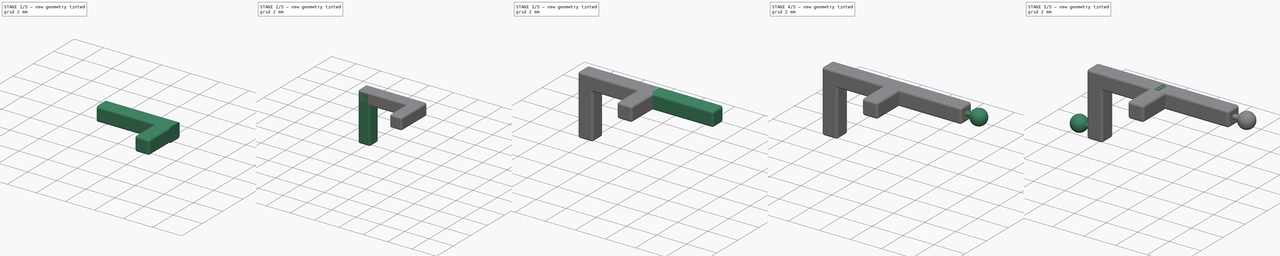
[diagram: build sequence overview — one tinted view per stage of 5, left to right]
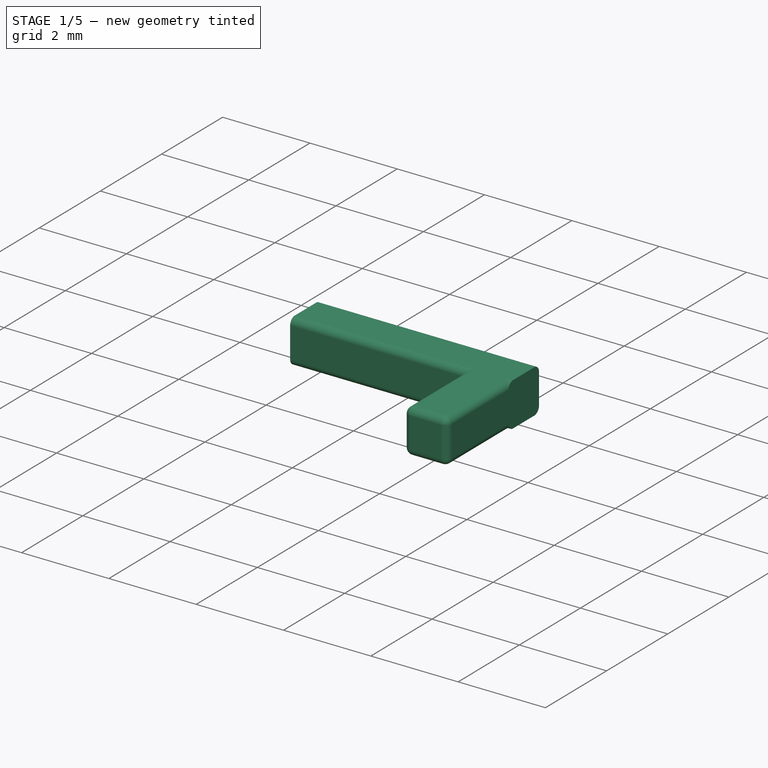
[diagram: stage 1 of 5 — iso view after this stage's code; geometry added in this stage tinted green]
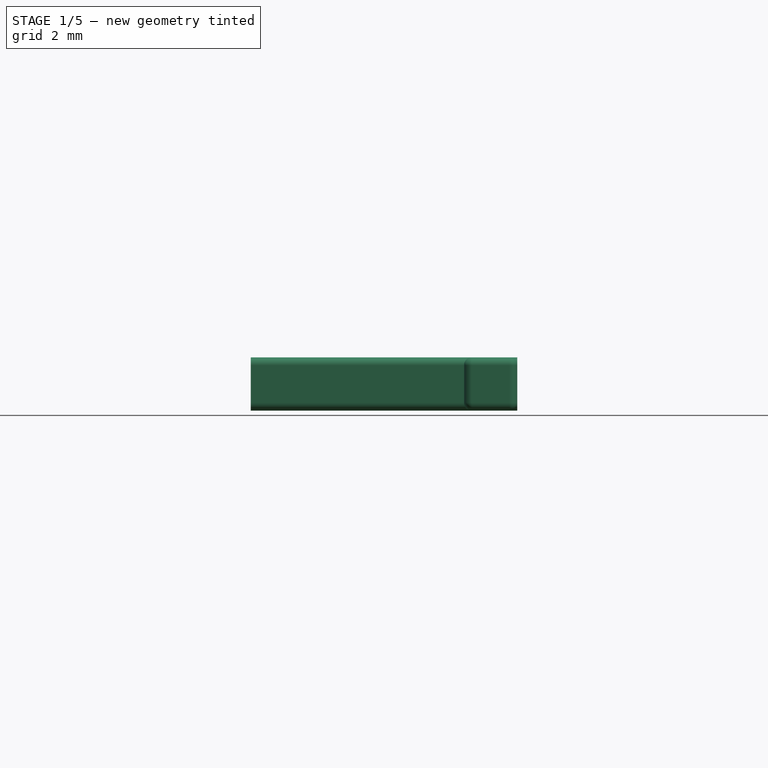
[diagram: stage 1 of 5 — front view after this stage's code; geometry added in this stage tinted green]
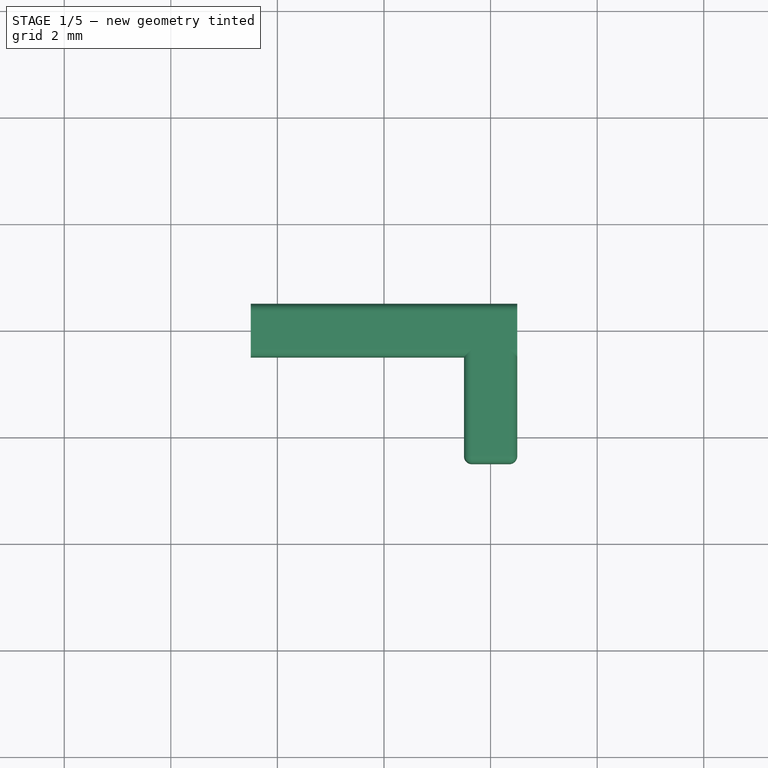
[diagram: stage 1 of 5 — top view after this stage's code; geometry added in this stage tinted green]
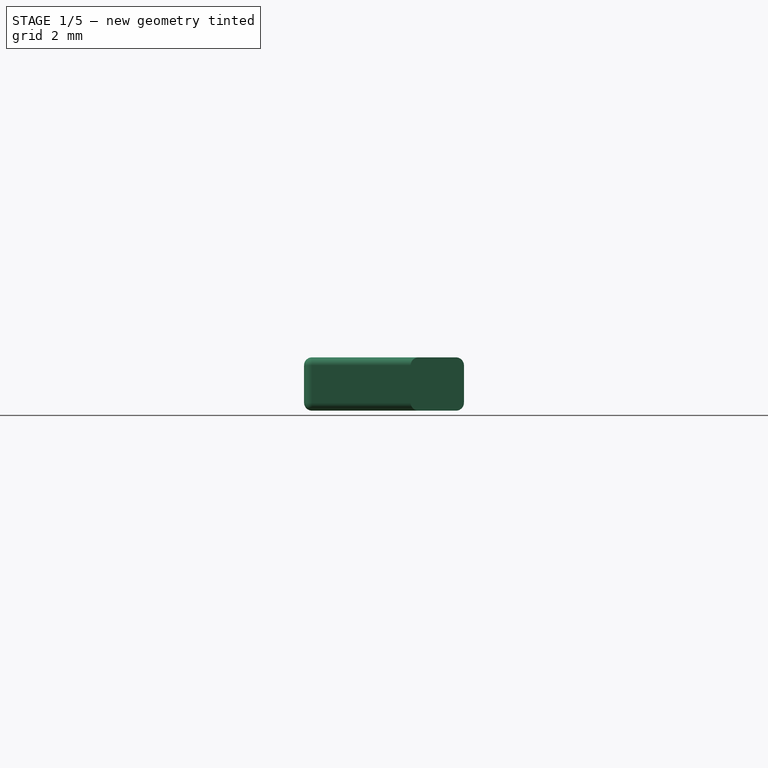
[diagram: stage 1 of 5 — right view after this stage's code; geometry added in this stage tinted green]
FCSTD DOCUMENT  (FreeCAD 0.20R29177 (Git))
Label: ax1
License: All rights reserved
LicenseURL: http://en.wikipedia.org/wiki/All_rights_reserved
objects: PartDesign::Plane×8, Sketcher::SketchObject×8, PartDesign::Pad×7, PartDesign::Body×5, PartDesign::Fillet×4, PartDesign::Line×2, PartDesign::Revolution×2, PartDesign::Point×2, Spreadsheet::Sheet×1, Part::MultiFuse×1, PartDesign::FeatureBase×1, Part::Part2DObjectPython×1
note: 54 computed .brp shape members not serialized (recipe doc carries the construction recipe); baked Part::Feature solids carry a one-line shape summary decoded from their .brp

FEATURE [PartDesign::Body] Body001  label="VertArmBody"
  Group = -> [DatumPlane002,Sketch001,Pad001,Fillet001]
  Origin = -> Origin001
  Tip = -> Fillet001
FEATURE [PartDesign::Plane] DatumPlane003  label="LeftArmBaseDatumPlane"
  AttachmentOffset = pos=(0,0,0.5) rot=(0,0,1;0rad)
  Length = 60
  MapMode = 5
  Placement = pos=(0.5,-1e-16,1e-16) rot=(0.57735,0.57735,0.57735;2.0944rad)
  ResizeMode = 0
  Support = -> [YZ_Plane002]
  Width = 60
  expr: .AttachmentOffset.Base.y = -Spreadsheet.LeftArmDatumPlaneZOffset
  expr: .AttachmentOffset.Base.z = Spreadsheet.LeftArmBaseDatumPlaneXOffset
FEATURE [Sketcher::SketchObject] Sketch002  label="LeftArmSketch"
  FullyConstrained = true
  MapMode = 5
  Placement = pos=(0.5,-1e-16,1e-16) rot=(0.57735,0.57735,0.57735;2.0944rad)
  Support = -> [DatumPlane003]
  expr: Constraints[20] = Spreadsheet.EdgeFilletRadius
  expr: Constraints[21] = Spreadsheet.BeamHeight
  expr: Constraints[22] = Spreadsheet.BeamWidth
  sketch-geometry (10):
    g0: ArcOfCircle CenterX=-0.35 CenterY=0.35 CenterZ=0 NormalX=0 NormalY=0 NormalZ=1 AngleXU=0 Radius=0.15 StartAngle=1.5708 EndAngle=3.14159
    g1: LineSegment StartX=-0.35 StartY=0.5 StartZ=0 EndX=0.35 EndY=0.5 EndZ=0
    g2: ArcOfCircle CenterX=0.35 CenterY=0.35 CenterZ=0 NormalX=0 NormalY=0 NormalZ=1 AngleXU=0 Radius=0.15 StartAngle=3e-16 EndAngle=1.5708
    g3: LineSegment StartX=0.5 StartY=0.35 StartZ=0 EndX=0.5 EndY=-0.35 EndZ=0
    g4: ArcOfCircle CenterX=0.35 CenterY=-0.35 CenterZ=0 NormalX=0 NormalY=0 NormalZ=1 AngleXU=0 Radius=0.15 StartAngle=4.71239 EndAngle=6.28319
    g5: LineSegment StartX=0.35 StartY=-0.5 StartZ=0 EndX=-0.35 EndY=-0.5 EndZ=0
    g6: ArcOfCircle CenterX=-0.35 CenterY=-0.35 CenterZ=0 NormalX=0 NormalY=0 NormalZ=1 AngleXU=0 Radius=0.15 StartAngle=3.14159 EndAngle=4.71239
    g7: LineSegment StartX=-0.5 StartY=-0.35 StartZ=0 EndX=-0.5 EndY=0.35 EndZ=0
    g8: GeomPoint X=-0.5 Y=0.5 Z=0
    g9: GeomPoint X=0.5 Y=-0.5 Z=0
  constraints (23):
    c: Tangent(g0,g1) = 1.5708
    c: Tangent(g1,g2) = 1.5708
    c: Tangent(g2,g3) = 1.5708
    c: Tangent(g3,g4) = 1.5708
    c: Tangent(g4,g5) = 1.5708
    c: Tangent(g5,g6) = 1.5708
    c: Tangent(g6,g7) = 1.5708
    c: Tangent(g7,g0) = 1.5708
    c: Horizontal(g1)
    c: Horizontal(g5)
    c: Vertical(g3)
    c: Vertical(g7)
    c: Equal(g0,g2)
    c: Equal(g2,g4)
    c: Equal(g4,g6)
    c: PointOnObject(g8,g1)
    c: PointOnObject(g8,g7)
    c: PointOnObject(g9,g3)
    c: PointOnObject(g9,g5)
    c: Symmetric(g0,g4,g-1)
    c: Radius(g0) = 0.15
    c: DistanceY(g4,g1) = 1
    c: DistanceX(g6,g3) = 1
FEATURE [PartDesign::Pad] Pad002  label="LeftArmPad"
  Direction = (1,-1e-16,1e-16)
  Length = 5
  Length2 = 10
  Placement = pos=(0.5,0,0) rot=(0.57735,0.57735,0.57735;2.0944rad)
  Profile = -> Sketch002
  ReferenceAxis = -> Sketch002 [N_Axis]
  Reversed = true
  Type = 0
  expr: Length = Spreadsheet.LeftArmLength
FEATURE [PartDesign::Body] Body002  label="LeftArmBody"
  Group = -> [DatumPlane003,Sketch002,Pad002,Fillet002]
  Origin = -> Origin002
  Tip = -> Fillet002
FEATURE [PartDesign::Plane] DatumPlane004  label="FrontArmBaseDatumPlane"
  AttachmentOffset = pos=(0,0,-0.5) rot=(0,0,1;0rad)
  Length = 60
  MapMode = 5
  Placement = pos=(0,0.5,1e-16) rot=(1,0,0;1.5708rad)
  ResizeMode = 0
  Support = -> [XZ_Plane003]
  Width = 60
  expr: .AttachmentOffset.Base.z = -Spreadsheet.FrontArmBaseDatumPlaneYOffset
FEATURE [Sketcher::SketchObject] Sketch003  label="FrontArmSketch"
  FullyConstrained = true
  MapMode = 5
  Placement = pos=(0,0.5,1e-16) rot=(1,0,0;1.5708rad)
  Support = -> [DatumPlane004]
  expr: Constraints[20] = Spreadsheet.EdgeFilletRadius
  expr: Constraints[21] = Spreadsheet.BeamHeight
  expr: Constraints[22] = Spreadsheet.BeamHeight
  sketch-geometry (10):
    g0: ArcOfCircle CenterX=-0.35 CenterY=0.35 CenterZ=0 NormalX=0 NormalY=0 NormalZ=1 AngleXU=0 Radius=0.15 StartAngle=1.5708 EndAngle=3.14159
    g1: LineSegment StartX=-0.35 StartY=0.5 StartZ=0 EndX=0.35 EndY=0.5 EndZ=0
    g2: ArcOfCircle CenterX=0.35 CenterY=0.35 CenterZ=0 NormalX=0 NormalY=0 NormalZ=1 AngleXU=0 Radius=0.15 StartAngle=-6.7943e-11 EndAngle=1.5708
    g3: LineSegment StartX=0.5 StartY=0.35 StartZ=0 EndX=0.5 EndY=-0.35 EndZ=0
    g4: ArcOfCircle CenterX=0.35 CenterY=-0.35 CenterZ=0 NormalX=0 NormalY=0 NormalZ=1 AngleXU=0 Radius=0.15 StartAngle=4.71239 EndAngle=6.28319
    g5: LineSegment StartX=0.35 StartY=-0.5 StartZ=0 EndX=-0.35 EndY=-0.5 EndZ=0
    g6: ArcOfCircle CenterX=-0.35 CenterY=-0.35 CenterZ=0 NormalX=0 NormalY=0 NormalZ=1 AngleXU=0 Radius=0.15 StartAngle=3.14159 EndAngle=4.71239
    g7: LineSegment StartX=-0.5 StartY=-0.35 StartZ=0 EndX=-0.5 EndY=0.35 EndZ=0
    g8: GeomPoint X=-0.5 Y=0.5 Z=0
    g9: GeomPoint X=0.5 Y=-0.5 Z=0
  constraints (23):
    c: Tangent(g0,g1) = 1.5708
    c: Tangent(g1,g2) = 1.5708
    c: Tangent(g2,g3) = 1.5708
    c: Tangent(g3,g4) = 1.5708
    c: Tangent(g4,g5) = 1.5708
    c: Tangent(g5,g6) = 1.5708
    c: Tangent(g6,g7) = 1.5708
    c: Tangent(g7,g0) = 1.5708
    c: Horizontal(g1)
    c: Horizontal(g5)
    c: Vertical(g3)
    c: Vertical(g7)
    c: Equal(g0,g2)
    c: Equal(g2,g4)
    c: Equal(g4,g6)
    c: PointOnObject(g8,g1)
    c: PointOnObject(g8,g7)
    c: PointOnObject(g9,g3)
    c: PointOnObject(g9,g5)
    c: Symmetric(g0,g4,g-1)
    c: Radius(g0) = 0.15
    c: DistanceX(g6,g3) = 1
    c: DistanceY(g4,g1) = 1
FEATURE [PartDesign::Pad] Pad003  label="FrontArmPad"
  Direction = (0,-1,-2e-16)
  Length = 3
  Length2 = 10
  Placement = pos=(0,0.5,0) rot=(1,0,0;1.5708rad)
  Profile = -> Sketch003
  ReferenceAxis = -> Sketch003 [N_Axis]
  Type = 0
  expr: Length = Spreadsheet.FrontArmLength
FEATURE [PartDesign::Fillet] Fillet003  label="FrontArmEndFillet"
  Base = -> Pad003 [Face9,Face10]
  BaseFeature = -> Pad003
  Placement = pos=(0,0.5,0) rot=(1,0,0;1.5708rad)
  Radius = 0.15
  SupportTransform = false
  UseAllEdges = false
  expr: Radius = Spreadsheet.EdgeFilletRadius
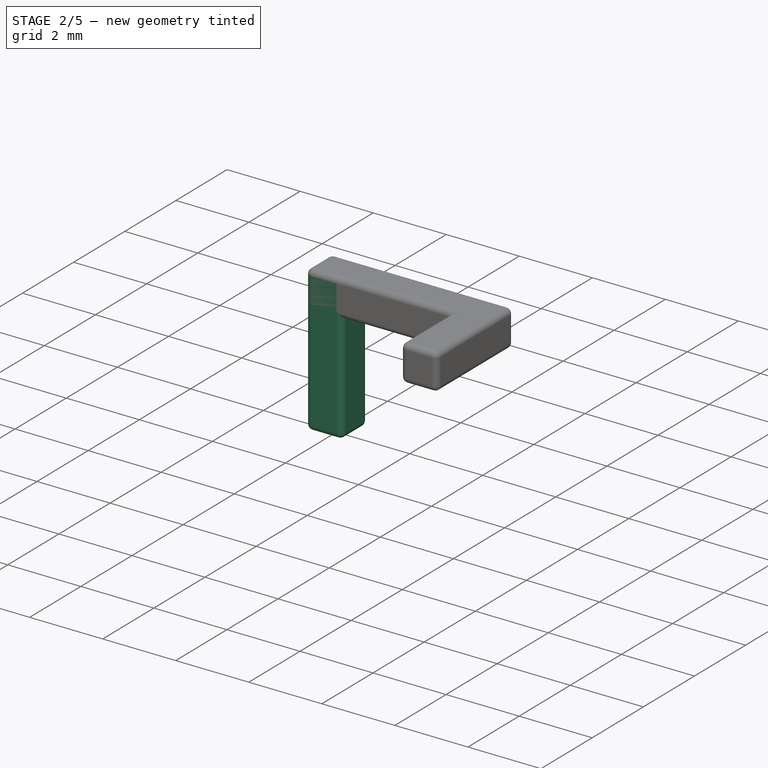
[diagram: stage 2 of 5 — iso view after this stage's code; geometry added in this stage tinted green]
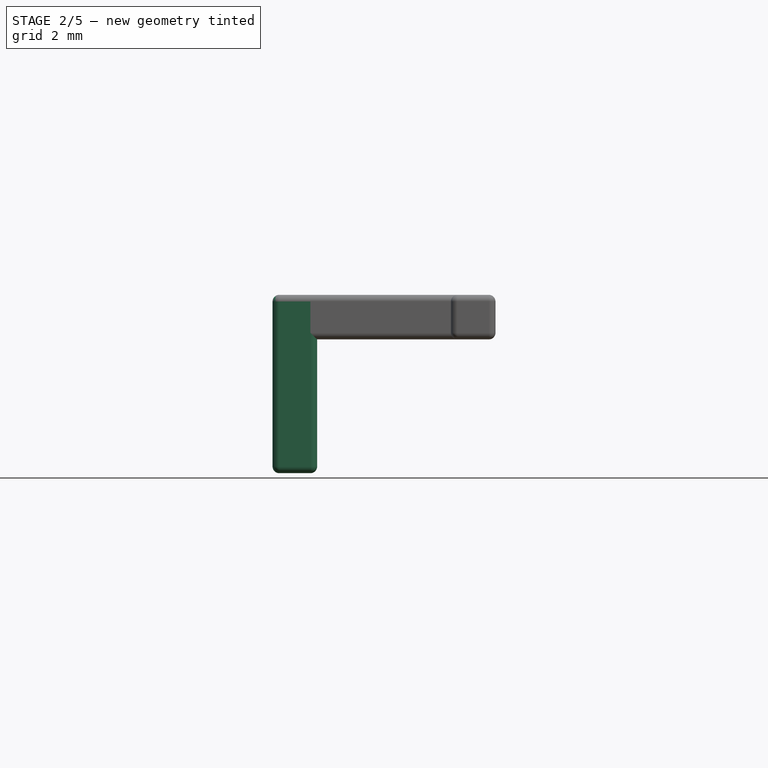
[diagram: stage 2 of 5 — front view after this stage's code; geometry added in this stage tinted green]
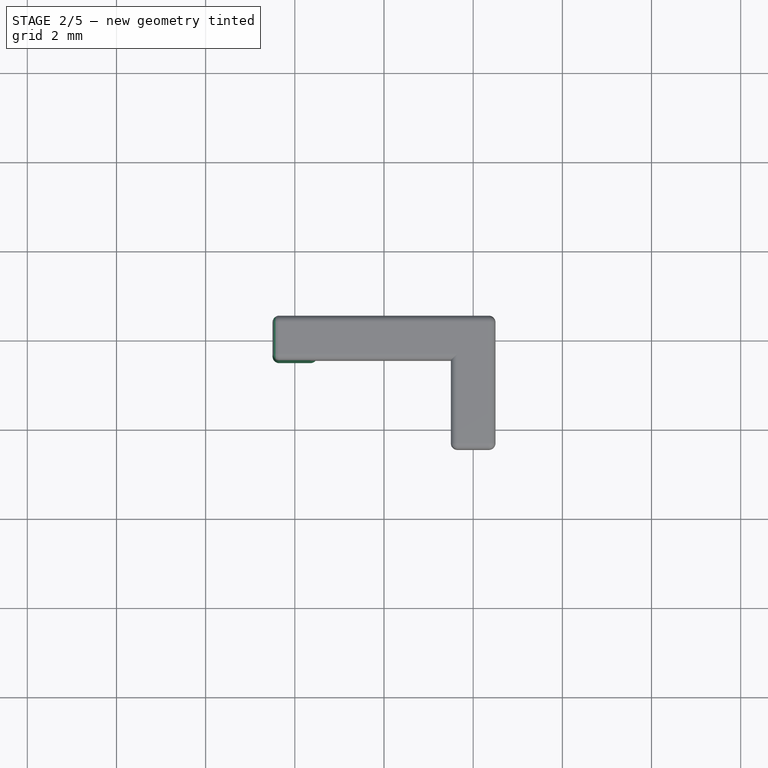
[diagram: stage 2 of 5 — top view after this stage's code; geometry added in this stage tinted green]
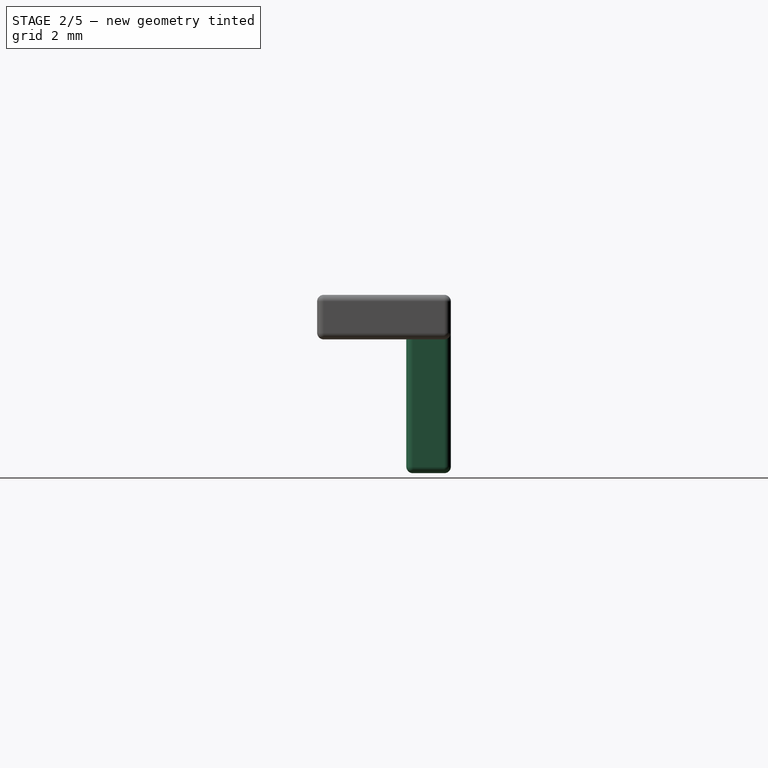
[diagram: stage 2 of 5 — right view after this stage's code; geometry added in this stage tinted green]
FEATURE [PartDesign::Body] Body  label="RightArmBody"
  Group = -> [DatumPlane,Sketch,Pad,Fillet]
  Origin = -> Origin
  Tip = -> Fillet
FEATURE [PartDesign::Plane] DatumPlane002  label="VertArmBaseDatumPlane"
  AttachmentOffset = pos=(-4,0,0.5) rot=(0,0,1;0rad)
  Length = 60
  MapMode = 5
  Placement = pos=(-4,0,0.5) rot=(0,0,1;0rad)
  ResizeMode = 0
  Support = -> [XY_Plane001]
  Width = 60
  expr: .AttachmentOffset.Base.x = -Spreadsheet.VertArmBaseDatumPlaneXOffet
  expr: .AttachmentOffset.Base.z = Spreadsheet.VertArmBaseDatumPlaneZOffset
FEATURE [Sketcher::SketchObject] Sketch001  label="VertArmSketch"
  FullyConstrained = true
  MapMode = 5
  Placement = pos=(-4,0,0.5) rot=(0,0,1;0rad)
  Support = -> [DatumPlane002]
  expr: Constraints[20] = Spreadsheet.EdgeFilletRadius
  expr: Constraints[21] = Spreadsheet.BeamHeight
  expr: Constraints[22] = Spreadsheet.BeamWidth
  sketch-geometry (10):
    g0: ArcOfCircle CenterX=-0.35 CenterY=0.35 CenterZ=0 NormalX=0 NormalY=0 NormalZ=1 AngleXU=0 Radius=0.15 StartAngle=1.5708 EndAngle=3.14159
    g1: LineSegment StartX=-0.35 StartY=0.5 StartZ=0 EndX=0.35 EndY=0.5 EndZ=0
    g2: ArcOfCircle CenterX=0.35 CenterY=0.35 CenterZ=0 NormalX=0 NormalY=0 NormalZ=1 AngleXU=0 Radius=0.15 StartAngle=3.23e-14 EndAngle=1.5708
    g3: LineSegment StartX=0.5 StartY=0.35 StartZ=0 EndX=0.5 EndY=-0.35 EndZ=0
    g4: ArcOfCircle CenterX=0.35 CenterY=-0.35 CenterZ=0 NormalX=0 NormalY=0 NormalZ=1 AngleXU=0 Radius=0.15 StartAngle=4.71239 EndAngle=6.28319
    g5: LineSegment StartX=0.35 StartY=-0.5 StartZ=0 EndX=-0.35 EndY=-0.5 EndZ=0
    g6: ArcOfCircle CenterX=-0.35 CenterY=-0.35 CenterZ=0 NormalX=0 NormalY=0 NormalZ=1 AngleXU=0 Radius=0.15 StartAngle=3.14159 EndAngle=4.71239
    g7: LineSegment StartX=-0.5 StartY=-0.35 StartZ=0 EndX=-0.5 EndY=0.35 EndZ=0
    g8: GeomPoint X=-0.5 Y=0.5 Z=0
    g9: GeomPoint X=0.5 Y=-0.5 Z=0
  constraints (23):
    c: Tangent(g0,g1) = 1.5708
    c: Tangent(g1,g2) = 1.5708
    c: Tangent(g2,g3) = 1.5708
    c: Tangent(g3,g4) = 1.5708
    c: Tangent(g4,g5) = 1.5708
    c: Tangent(g5,g6) = 1.5708
    c: Tangent(g6,g7) = 1.5708
    c: Tangent(g7,g0) = 1.5708
    c: Horizontal(g1)
    c: Horizontal(g5)
    c: Vertical(g3)
    c: Vertical(g7)
    c: Equal(g0,g2)
    c: Equal(g2,g4)
    c: Equal(g4,g6)
    c: PointOnObject(g8,g1)
    c: PointOnObject(g8,g7)
    c: PointOnObject(g9,g3)
    c: PointOnObject(g9,g5)
    c: Symmetric(g4,g0,g-1)
    c: Radius(g0) = 0.15
    c: DistanceX(g6,g3) = 1
    c: DistanceY(g4,g1) = 1
FEATURE [PartDesign::Pad] Pad001  label="VertArmPad"
  Direction = (0,0,1)
  Length = 4
  Length2 = 10
  Placement = pos=(-4,0,0.5) rot=(0,0,1;0rad)
  Profile = -> Sketch001
  ReferenceAxis = -> Sketch001 [N_Axis]
  Reversed = true
  Type = 0
  expr: Length = Spreadsheet.VertArmLength
FEATURE [PartDesign::Fillet] Fillet001  label="VertArmEndFillet"
  Base = -> Pad001 [Face9,Face10]
  BaseFeature = -> Pad001
  Placement = pos=(-4,0,0.5) rot=(0,0,1;0rad)
  Radius = 0.15
  SupportTransform = false
  UseAllEdges = false
  expr: Radius = Spreadsheet.EdgeFilletRadius
FEATURE [PartDesign::Fillet] Fillet002  label="LeftArmEndFillet"
  Base = -> Pad002 [Face9,Face10]
  BaseFeature = -> Pad002
  Placement = pos=(0.5,0,0) rot=(0.57735,0.57735,0.57735;2.0944rad)
  Radius = 0.15
  SupportTransform = false
  UseAllEdges = false
  expr: Radius = Spreadsheet.EdgeFilletRadius
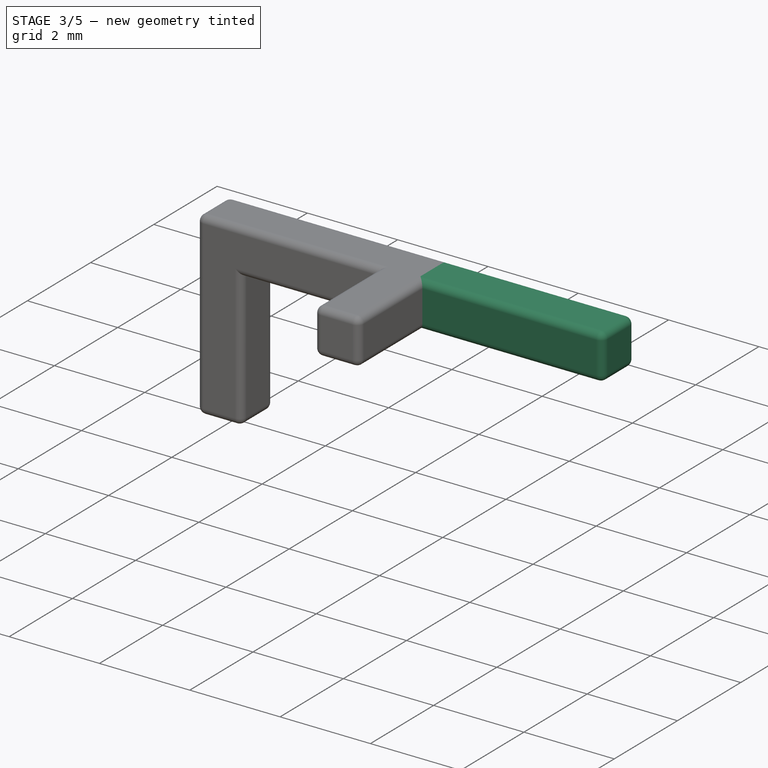
[diagram: stage 3 of 5 — iso view after this stage's code; geometry added in this stage tinted green]
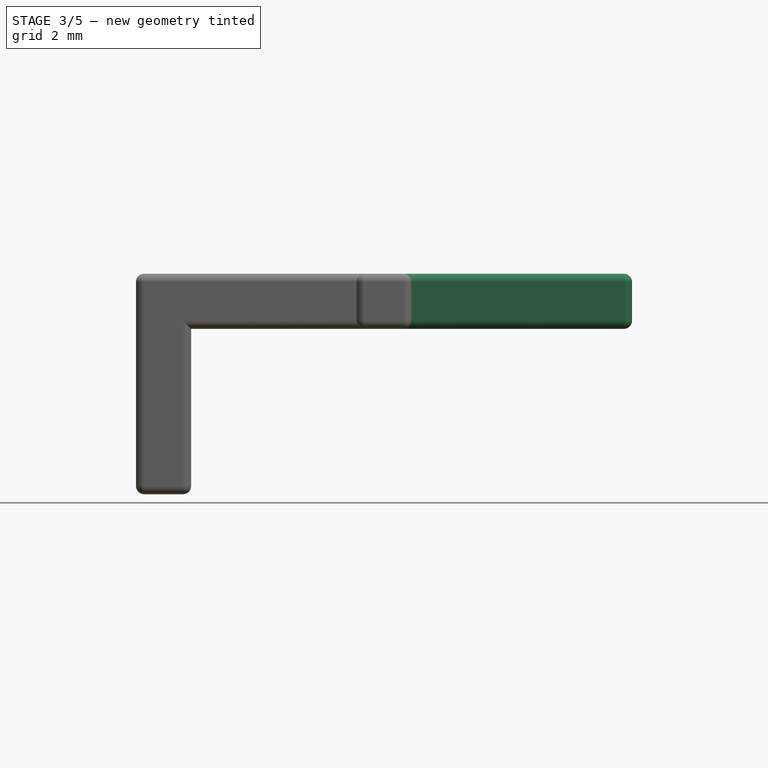
[diagram: stage 3 of 5 — front view after this stage's code; geometry added in this stage tinted green]
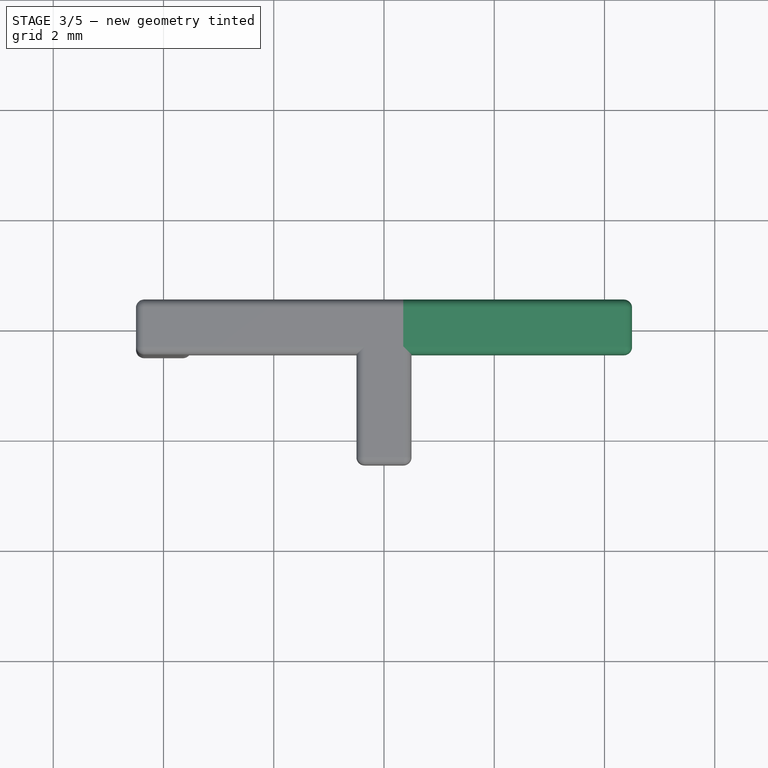
[diagram: stage 3 of 5 — top view after this stage's code; geometry added in this stage tinted green]
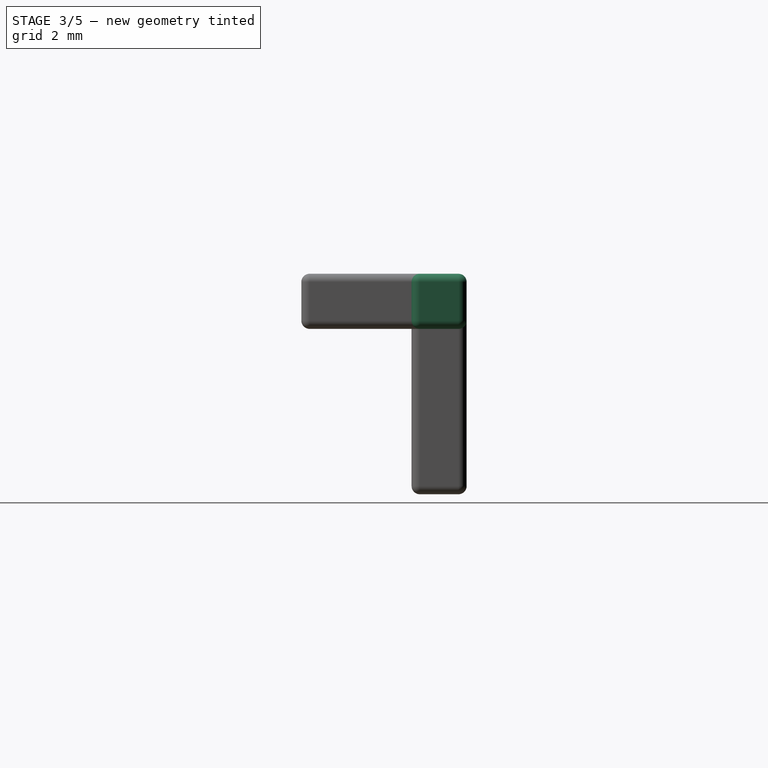
[diagram: stage 3 of 5 — right view after this stage's code; geometry added in this stage tinted green]
FEATURE [Spreadsheet::Sheet] Spreadsheet
  cells = A2=Design Parameters; A3=RefLength; B3(RefLength)==1mm; A4=RightArmLength; B4(RightArmLength)==5 * RefLength; A5=LeftArmLength; B5(LeftArmLength)==5 * RefLength; A6=VertArmLength; B6(VertArmLength)==4 * RefLength; A7=FrontArmLength; B7(FrontArmLength)==3 * RefLength; A8=BeamWidth; B8(BeamWidth)==1 * RefLength; A9=BeamHeight; B9(BeamHeight)==1 * RefLength; A10=BallJointDiam; B10(BallJointDiam)==1 * RefLength; A11=BallJointConnDiam; B11(BallJointConnDiam)==0.3 * RefLength; A12=BallJointConnLength; B12(BallJointConnLength)==0.3 * RefLength; A13=BallJointConnPadLength; B13(BallJointConnPadLength)==BallJointConnLength + 0.5 * BallJointDiam; A14=RightArmBaseDatumPlaneXOffset; B14(RightArmBaseDatumPlaneXOffset)==0.5 * BeamHeight; A15=RightArmTipDatumPlaneXOffset; B15(RightArmTipDatumPlaneXOffset)==RightArmLength - 0.5 * BeamHeight; A16=RightArmBallJointDatumPlaneXOffset; B16(RightArmBallJointDatumPlaneXOffset)==RightArmLength - 0.5 * BeamHeight + BallJointConnLength + 0.5 * BallJointDiam; A17=VertArmBaseDatumPlaneXOffet; B17(VertArmBaseDatumPlaneXOffet)==LeftArmLength - BeamHeight; A18=VertArmBaseDatumPlaneZOffset; B18(VertArmBaseDatumPlaneZOffset)==0.5 * BeamHeight; A19=VertArmTipDatumPlaneZOffset; B19(VertArmTipDatumPlaneZOffset)==VertArmLength - 0.5 * BeamHeight; A20=LeftArmBaseDatumPlaneXOffset; B20(LeftArmBaseDatumPlaneXOffset)==0.5 * BeamHeight; A21=LeftArmTipDatumPlaneXOffset; B21(LeftArmTipDatumPlaneXOffset)==LeftArmLength - 0.5 * BeamHeight; A22=LeftArmDatumPlaneZOffset; B22(LeftArmDatumPlaneZOffset)==0mm; A23=LeftBallJointConnDatumPlaneZOffset; B23(LeftBallJointConnDatumPlaneZOffset)==VertArmLength - BeamHeight; A24=LeftBallJointDatumPlaneXOffset; B24(LeftBallJointDatumPlaneXOffset)==LeftArmLength - 0.5 * BeamHeight + BallJointConnLength + 0.5 * BallJointDiam; A25=FrontArmBaseDatumPlaneYOffset; B25(FrontArmBaseDatumPlaneYOffset)==0.5 * BeamWidth; A26=EdgeFilletRadius; B26(EdgeFilletRadius)==0.15 * RefLength; A27=BallJointConnFilletRadius; B27(BallJointConnFilletRadius)==0.1 * RefLength; A28=LabelString; B28(LabelString)=AX1; A29=LabelSize; B29(LabelSize)==0.15 * RefLength; A30=LabelPadHeight; B30(LabelPadHeight)==0.05 * RefLength
FEATURE [PartDesign::Plane] DatumPlane  label="RightArmBaseDatumPlane"
  AttachmentOffset = pos=(0,0,-0.5) rot=(0,0,1;0rad)
  Length = 60
  MapMode = 5
  Placement = pos=(-0.5,1e-16,-1e-16) rot=(0.57735,0.57735,0.57735;2.0944rad)
  ResizeMode = 0
  Support = -> [YZ_Plane]
  Width = 60
  expr: .AttachmentOffset.Base.z = -Spreadsheet.RightArmBaseDatumPlaneXOffset
FEATURE [Sketcher::SketchObject] Sketch  label="RightArmSketch"
  FullyConstrained = true
  MapMode = 5
  Placement = pos=(-0.5,1e-16,-1e-16) rot=(0.57735,0.57735,0.57735;2.0944rad)
  Support = -> [DatumPlane]
  expr: Constraints[20] = Spreadsheet.EdgeFilletRadius
  expr: Constraints[21] = Spreadsheet.BeamHeight
  expr: Constraints[22] = Spreadsheet.BeamWidth
  sketch-geometry (10):
    g0: ArcOfCircle CenterX=-0.35 CenterY=0.35 CenterZ=0 NormalX=0 NormalY=0 NormalZ=1 AngleXU=0 Radius=0.15 StartAngle=1.5708 EndAngle=3.14159
    g1: LineSegment StartX=-0.35 StartY=0.5 StartZ=0 EndX=0.35 EndY=0.5 EndZ=0
    g2: ArcOfCircle CenterX=0.35 CenterY=0.35 CenterZ=0 NormalX=0 NormalY=0 NormalZ=1 AngleXU=0 Radius=0.15 StartAngle=0 EndAngle=1.5708
    g3: LineSegment StartX=0.5 StartY=0.35 StartZ=0 EndX=0.5 EndY=-0.35 EndZ=0
    g4: ArcOfCircle CenterX=0.35 CenterY=-0.35 CenterZ=0 NormalX=0 NormalY=0 NormalZ=1 AngleXU=0 Radius=0.15 StartAngle=4.71239 EndAngle=6.28319
    g5: LineSegment StartX=0.35 StartY=-0.5 StartZ=0 EndX=-0.35 EndY=-0.5 EndZ=0
    g6: ArcOfCircle CenterX=-0.35 CenterY=-0.35 CenterZ=0 NormalX=0 NormalY=0 NormalZ=1 AngleXU=0 Radius=0.15 StartAngle=3.14159 EndAngle=4.71239
    g7: LineSegment StartX=-0.5 StartY=-0.35 StartZ=0 EndX=-0.5 EndY=0.35 EndZ=0
    g8: GeomPoint X=-0.5 Y=0.5 Z=0
    g9: GeomPoint X=0.5 Y=-0.5 Z=0
  constraints (23):
    c: Tangent(g0,g1) = 1.5708
    c: Tangent(g1,g2) = 1.5708
    c: Tangent(g2,g3) = 1.5708
    c: Tangent(g3,g4) = 1.5708
    c: Tangent(g4,g5) = 1.5708
    c: Tangent(g5,g6) = 1.5708
    c: Tangent(g6,g7) = 1.5708
    c: Tangent(g7,g0) = 1.5708
    c: Horizontal(g1)
    c: Horizontal(g5)
    c: Vertical(g3)
    c: Vertical(g7)
    c: Equal(g0,g2)
    c: Equal(g2,g4)
    c: Equal(g4,g6)
    c: PointOnObject(g8,g1)
    c: PointOnObject(g8,g7)
    c: PointOnObject(g9,g3)
    c: PointOnObject(g9,g5)
    c: Symmetric(g0,g4,g-1)
    c: Radius(g0) = 0.15
    c: DistanceY(g4,g1) = 1
    c: DistanceX(g6,g3) = 1
FEATURE [PartDesign::Pad] Pad  label="RightArmPad"
  Direction = (1,-1e-16,1e-16)
  Length = 5
  Length2 = 10
  Placement = pos=(-0.5,0,0) rot=(0.57735,0.57735,0.57735;2.0944rad)
  Profile = -> Sketch
  ReferenceAxis = -> Sketch [N_Axis]
  Type = 0
  expr: Length = Spreadsheet.RightArmLength
FEATURE [PartDesign::Fillet] Fillet  label="RightArmEndFillet"
  Base = -> Pad [Face9,Face10]
  BaseFeature = -> Pad
  Placement = pos=(-0.5,0,0) rot=(0.57735,0.57735,0.57735;2.0944rad)
  Radius = 0.15
  SupportTransform = false
  UseAllEdges = false
  expr: Radius = Spreadsheet.EdgeFilletRadius
FEATURE [PartDesign::Body] Body003  label="FrontArmBody"
  Group = -> [DatumPlane004,Sketch003,Pad003,Fillet003]
  Origin = -> Origin003
  Tip = -> Fillet003
FEATURE [Part::MultiFuse] Fusion
  Shapes = -> [Body,Body001,Body002,Body003]
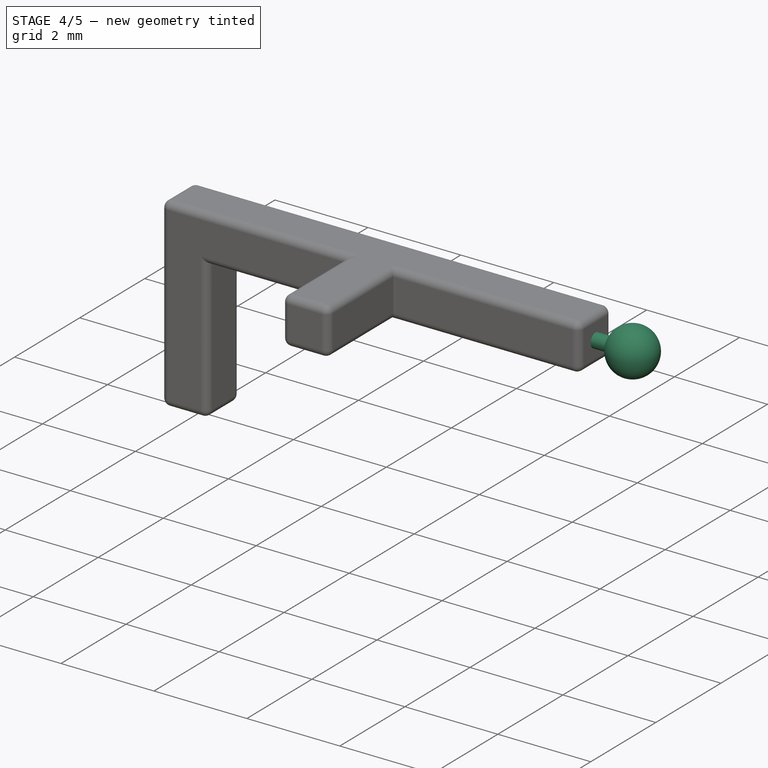
[diagram: stage 4 of 5 — iso view after this stage's code; geometry added in this stage tinted green]
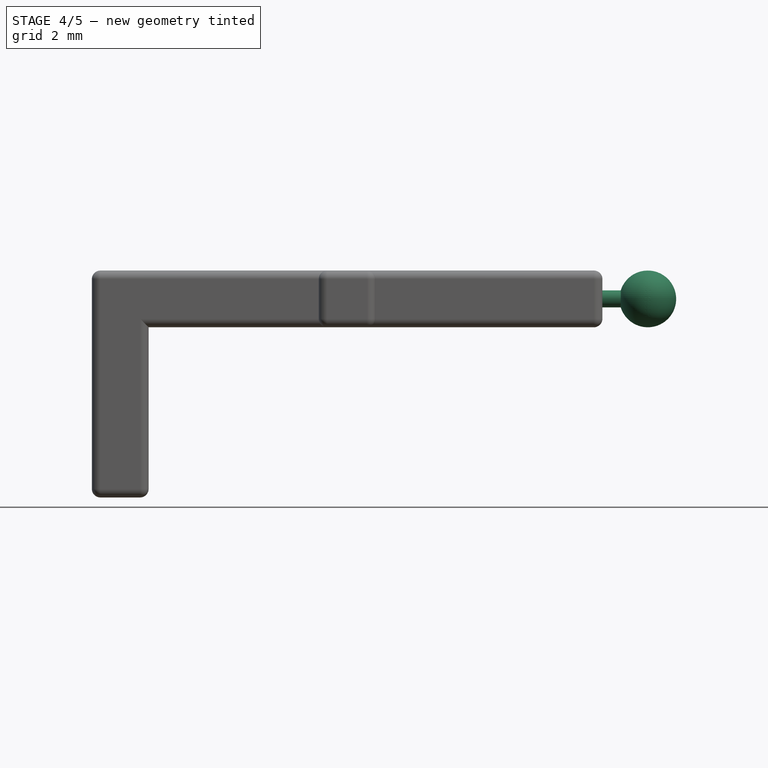
[diagram: stage 4 of 5 — front view after this stage's code; geometry added in this stage tinted green]
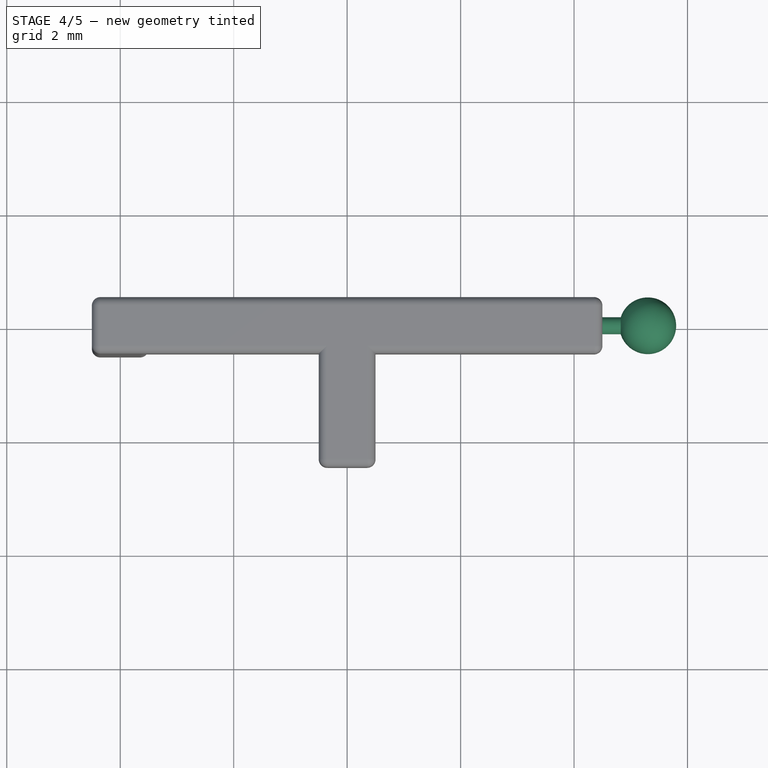
[diagram: stage 4 of 5 — top view after this stage's code; geometry added in this stage tinted green]
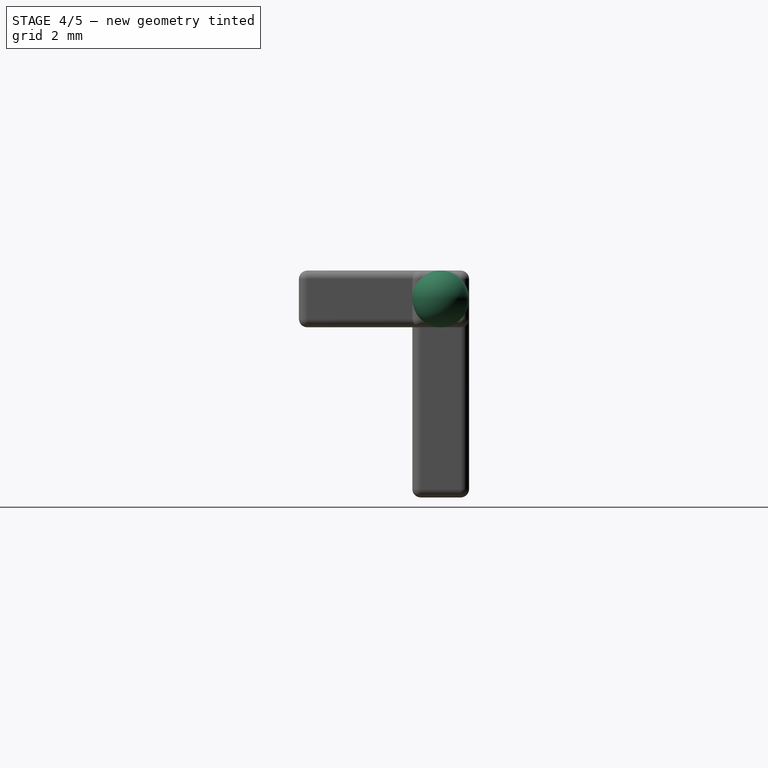
[diagram: stage 4 of 5 — right view after this stage's code; geometry added in this stage tinted green]
FEATURE [PartDesign::FeatureBase] BaseFeature  label="CombinedArmBaseFeature"
  BaseFeature = -> Fusion
FEATURE [PartDesign::Plane] DatumPlane005  label="RightArmTipDatumPlane"
  AttachmentOffset = pos=(0,0,4.5) rot=(0,0,1;0rad)
  Length = 60
  MapMode = 5
  Placement = pos=(4.5,-1e-15,1e-15) rot=(0.57735,0.57735,0.57735;2.0944rad)
  ResizeMode = 0
  Support = -> [YZ_Plane004]
  Width = 60
  expr: .AttachmentOffset.Base.z = Spreadsheet.RightArmTipDatumPlaneXOffset
FEATURE [Sketcher::SketchObject] Sketch004  label="RightArmBallJointConnSketch"
  FullyConstrained = true
  MapMode = 5
  Placement = pos=(4.5,-1e-15,1e-15) rot=(0.57735,0.57735,0.57735;2.0944rad)
  Support = -> [DatumPlane005]
  expr: Constraints[1] = Spreadsheet.BallJointConnDiam
  sketch-geometry (1):
    g0: Circle CenterX=0 CenterY=0 CenterZ=0 NormalX=0 NormalY=0 NormalZ=1 AngleXU=0 Radius=0.15
  constraints (2):
    c: Coincident(g0,g-1)
    c: Diameter(g0) = 0.3
FEATURE [PartDesign::Pad] Pad004  label="RightArmBallJointConnPad"
  BaseFeature = -> BaseFeature
  Direction = (1,-1e-16,1e-16)
  Length = 0.8
  Length2 = 10
  Profile = -> Sketch004
  ReferenceAxis = -> Sketch004 [N_Axis]
  Type = 0
  expr: Length = Spreadsheet.BallJointConnPadLength
FEATURE [PartDesign::Plane] DatumPlane006  label="RightArmBallJointDatumPlane"
  AttachmentOffset = pos=(0,0,5.3) rot=(0,0,1;0rad)
  Length = 60
  MapMode = 5
  Placement = pos=(5.3,-1.2e-15,1.2e-15) rot=(0.57735,0.57735,0.57735;2.0944rad)
  ResizeMode = 0
  Support = -> [YZ_Plane004]
  Width = 60
  expr: .AttachmentOffset.Base.z = Spreadsheet.RightArmBallJointDatumPlaneXOffset
FEATURE [Sketcher::SketchObject] Sketch005  label="RightArmBallJointSketch"
  FullyConstrained = true
  MapMode = 5
  Placement = pos=(5.3,-1.2e-15,1.2e-15) rot=(0.57735,0.57735,0.57735;2.0944rad)
  Support = -> [DatumPlane006]
  expr: Constraints[6] = Spreadsheet.BallJointDiam
  sketch-geometry (3):
    g0: ArcOfCircle CenterX=-8e-16 CenterY=0 CenterZ=0 NormalX=0 NormalY=0 NormalZ=1 AngleXU=0 Radius=0.5 StartAngle=1.5708 EndAngle=4.71239
    g1: LineSegment StartX=-8e-16 StartY=0.5 StartZ=0 EndX=-8e-16 EndY=0 EndZ=0
    g2: LineSegment StartX=-8e-16 StartY=-0.5 StartZ=0 EndX=-8e-16 EndY=0 EndZ=0
  constraints (8):
    c: Coincident(g1,g2)
    c: Coincident(g1,g-1)
    c: Vertical(g1)
    c: Vertical(g2)
    c: Coincident(g0,g2)
    c: Coincident(g0,g1)
    c: DistanceY(g0,g0) = 1
    c: Coincident(g0,g1)
FEATURE [PartDesign::Line] DatumLine  label="RightArmBallJointDatumLine"
  AttacherType = Attacher::AttachEngineLine
  Length = 20
  MapMode = 29
  Placement = pos=(5.3,-1.9e-15,1.2e-15) rot=(0,1,0;3.14159rad)
  ResizeMode = 0
  Support = -> [Sketch005]
FEATURE [PartDesign::Revolution] Revolution  label="RightArmBallJointRevolution"
  Angle = 360
  Axis = (0,-1e-16,-1)
  Base = (5.3,-1.9e-15,1.2e-15)
  BaseFeature = -> Pad004
  Profile = -> Sketch005
  ReferenceAxis = -> DatumLine
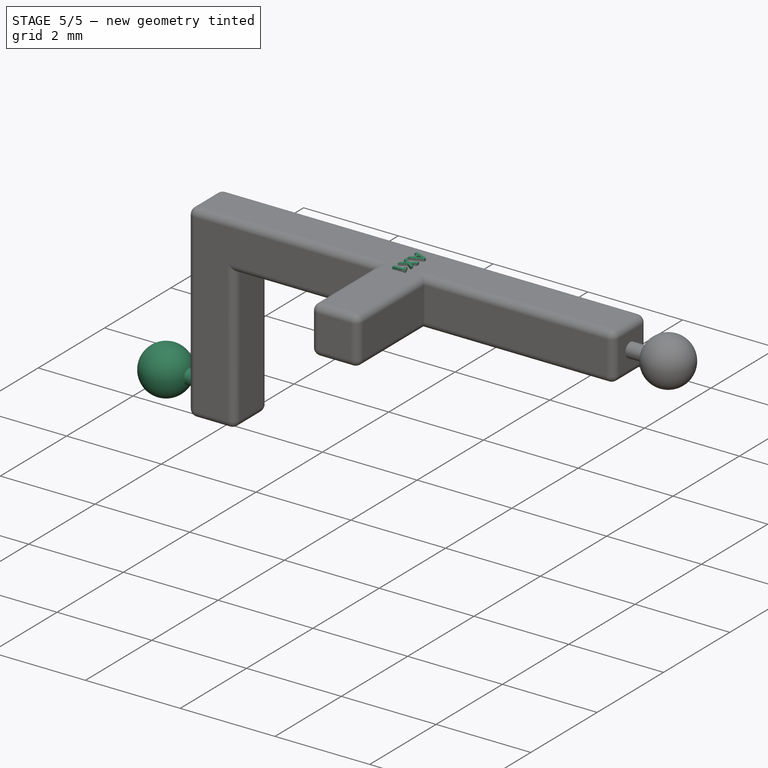
[diagram: stage 5 of 5 — iso view after this stage's code; geometry added in this stage tinted green]
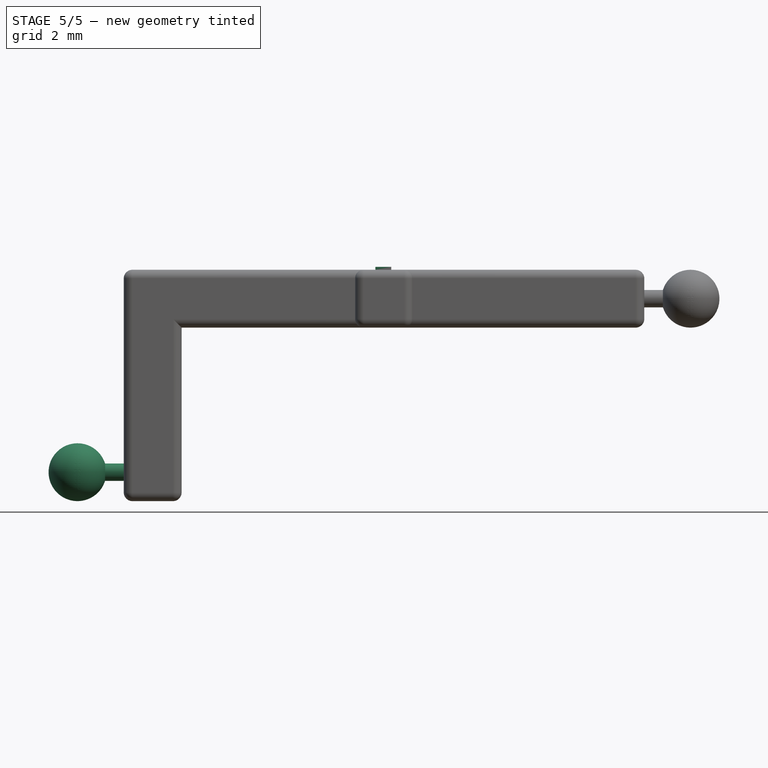
[diagram: stage 5 of 5 — front view after this stage's code; geometry added in this stage tinted green]
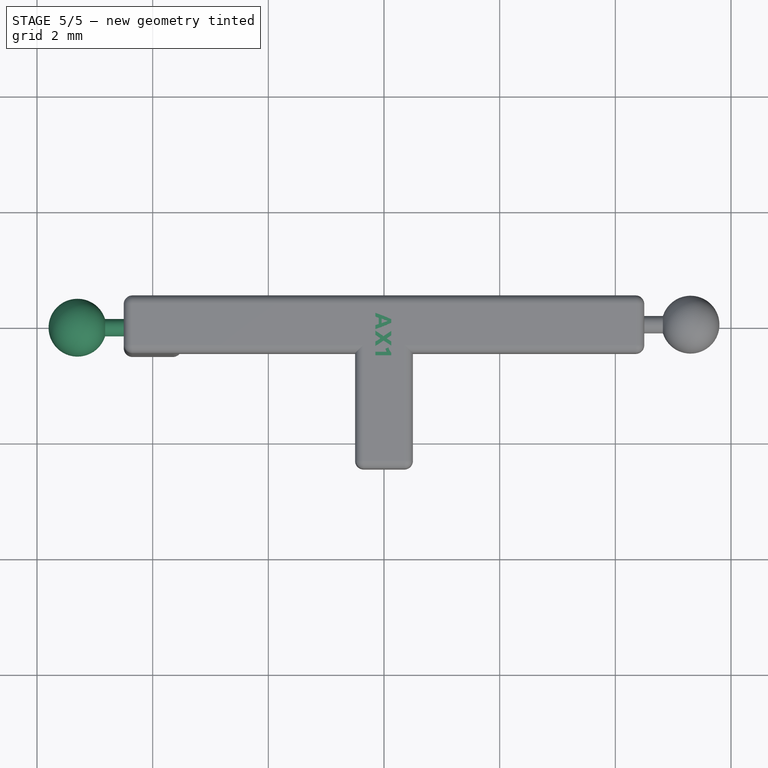
[diagram: stage 5 of 5 — top view after this stage's code; geometry added in this stage tinted green]
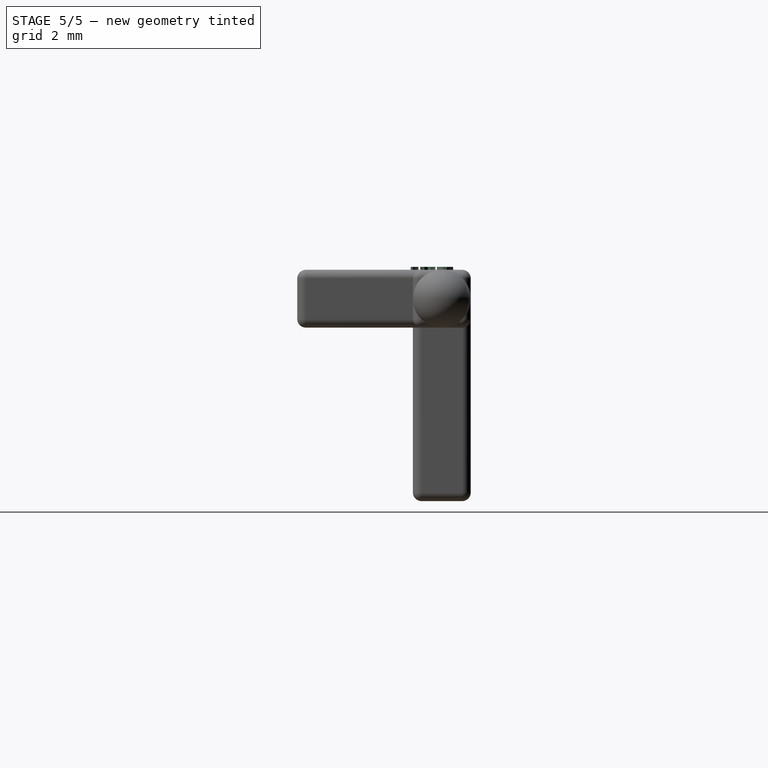
[diagram: stage 5 of 5 — right view after this stage's code; geometry added in this stage tinted green]
FEATURE [PartDesign::Plane] DatumPlane007  label="LeftBallJointConnDatumPlane"
  AttachmentOffset = pos=(0,-3,-4.5) rot=(0,0,1;0rad)
  Length = 60
  MapMode = 5
  Placement = pos=(-4.5,3e-16,-3) rot=(0.57735,0.57735,0.57735;2.0944rad)
  ResizeMode = 0
  Support = -> [YZ_Plane004]
  Width = 60
  expr: .AttachmentOffset.Base.y = -Spreadsheet.LeftBallJointConnDatumPlaneZOffset
  expr: .AttachmentOffset.Base.z = -Spreadsheet.LeftArmTipDatumPlaneXOffset
FEATURE [Sketcher::SketchObject] Sketch006  label="LeftArmBallJointConnSketch"
  FullyConstrained = true
  MapMode = 5
  Placement = pos=(-4.5,3e-16,-3) rot=(0.57735,0.57735,0.57735;2.0944rad)
  Support = -> [DatumPlane007]
  expr: Constraints[1] = Spreadsheet.BallJointConnDiam
  sketch-geometry (1):
    g0: Circle CenterX=0 CenterY=0 CenterZ=0 NormalX=0 NormalY=0 NormalZ=1 AngleXU=0 Radius=0.15
  constraints (2):
    c: Coincident(g0,g-1)
    c: Diameter(g0) = 0.3
FEATURE [PartDesign::Pad] Pad005  label="LeftArmBallJointConnPad"
  BaseFeature = -> Revolution
  Direction = (1,-1e-16,1e-16)
  Length = 0.8
  Length2 = 10
  Profile = -> Sketch006
  ReferenceAxis = -> Sketch006 [N_Axis]
  Reversed = true
  Type = 0
  expr: Length = Spreadsheet.BallJointConnPadLength
FEATURE [PartDesign::Plane] DatumPlane008  label="LeftArmBallJointDatumPlane"
  AttachmentOffset = pos=(0,-3,-5.3) rot=(0,0,1;0rad)
  Length = 60
  MapMode = 5
  Placement = pos=(-5.3,5e-16,-3) rot=(0.57735,0.57735,0.57735;2.0944rad)
  ResizeMode = 0
  Support = -> [YZ_Plane004]
  Width = 60
  expr: .AttachmentOffset.Base.y = -Spreadsheet.LeftBallJointConnDatumPlaneZOffset
  expr: .AttachmentOffset.Base.z = -Spreadsheet.LeftBallJointDatumPlaneXOffset
FEATURE [Sketcher::SketchObject] Sketch007  label="LeftArmBallJointSketch"
  FullyConstrained = true
  MapMode = 5
  Placement = pos=(-5.3,5e-16,-3) rot=(0.57735,0.57735,0.57735;2.0944rad)
  Support = -> [DatumPlane008]
  expr: Constraints[7] = Spreadsheet.BallJointDiam
  sketch-geometry (3):
    g0: ArcOfCircle CenterX=-8e-16 CenterY=0 CenterZ=0 NormalX=0 NormalY=0 NormalZ=1 AngleXU=0 Radius=0.5 StartAngle=1.5708 EndAngle=4.71239
    g1: LineSegment StartX=-8e-16 StartY=0.5 StartZ=0 EndX=-8e-16 EndY=0 EndZ=0
    g2: LineSegment StartX=-8e-16 StartY=-0.5 StartZ=0 EndX=-8e-16 EndY=0 EndZ=0
  constraints (8):
    c: Coincident(g0,g-1)
    c: Coincident(g0,g1)
    c: Coincident(g2,g0)
    c: Coincident(g2,g0)
    c: Coincident(g1,g0)
    c: Vertical(g1)
    c: Vertical(g2)
    c: DistanceY(g0,g0) = 1
FEATURE [PartDesign::Line] DatumLine001  label="LeftArmBallJointDatumLine"
  AttacherType = Attacher::AttachEngineLine
  Length = 20
  MapMode = 29
  Placement = pos=(-5.3,-2e-16,-3) rot=(0,1,0;3.14159rad)
  ResizeMode = 0
  Support = -> [Sketch007]
FEATURE [PartDesign::Revolution] Revolution001  label="LeftArmBallJointRevolution"
  Angle = 360
  Axis = (0,-1e-16,-1)
  Base = (-5.3,-2e-16,-3)
  BaseFeature = -> Pad005
  Profile = -> Sketch007
  ReferenceAxis = -> DatumLine001
FEATURE [Part::Part2DObjectPython] ShapeString  label="LabelShapeString"  # Draft 2D object (typed FeaturePython)
  FontFile = ./font/Ubuntu-B.ttf
  MakeFace = true
  Placement = pos=(-0.15,0.2,0.5) rot=(0,0,-1;1.5708rad)
  Size = 0.15
  String = AX1
  Tracking = 0
  expr: .Placement.Base.x = -Spreadsheet.RefLength * 0.15
  expr: .Placement.Base.y = Spreadsheet.RefLength * 0.2
  expr: .Placement.Base.z = Spreadsheet.BeamHeight * 0.5
  expr: Size = Spreadsheet.LabelSize
  expr: String = Spreadsheet.LabelString
FEATURE [PartDesign::Pad] Pad006  label="LabelPad"
  BaseFeature = -> Revolution001
  Direction = (0,0,1)
  Length = 0.05
  Length2 = 10
  Profile = -> ShapeString
  ReferenceAxis = -> ShapeString [N_Axis]
  Type = 0
  expr: Length = Spreadsheet.LabelPadHeight
FEATURE [PartDesign::Point] DatumPoint  label="LeftBallJointDatumPoint"
  AttacherType = Attacher::AttachEnginePoint
  MapMode = 32
  Placement = pos=(-5.3,5e-16,-3) rot=(0.57735,0.57735,0.57735;2.0944rad)
  Support = -> [Sketch007]
FEATURE [PartDesign::Point] DatumPoint001  label="RightBallJointDatumPoint"
  AttacherType = Attacher::AttachEnginePoint
  MapMode = 32
  Placement = pos=(5.3,-1.2e-15,1.2e-15) rot=(0.57735,0.57735,0.57735;2.0944rad)
  Support = -> [Sketch005]
FEATURE [PartDesign::Body] Body004  label="CombinedArmBody"
  BaseFeature = -> Fusion
  Group = -> [BaseFeature,DatumPlane005,Sketch004,Pad004,DatumPlane006,Sketch005,DatumLine,Revolution,DatumPlane007,Sketch006,Pad005,DatumPlane008,Sketch007,DatumLine001,Revolution001,ShapeString,Pad006,DatumPoint,DatumPoint001]
  Origin = -> Origin004
  Tip = -> Pad006
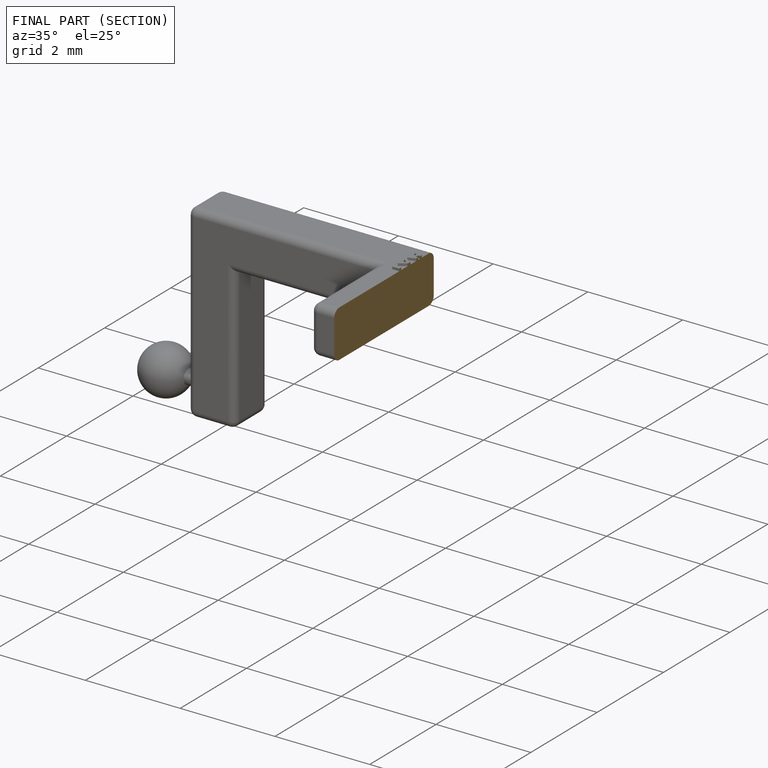
[diagram: finished part — half-section view (interior)]
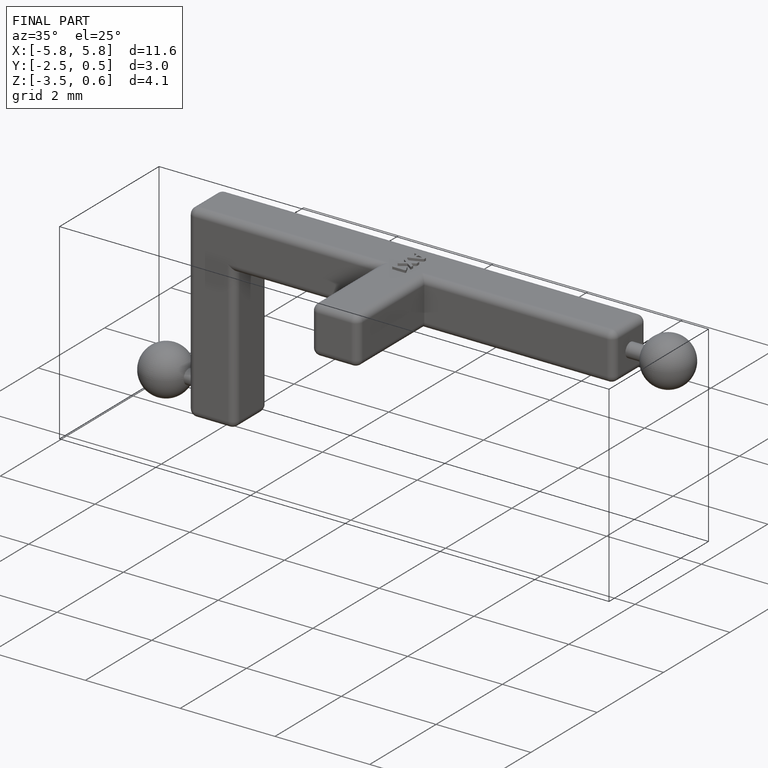
[diagram: finished part — iso view with bounding-box wireframe]
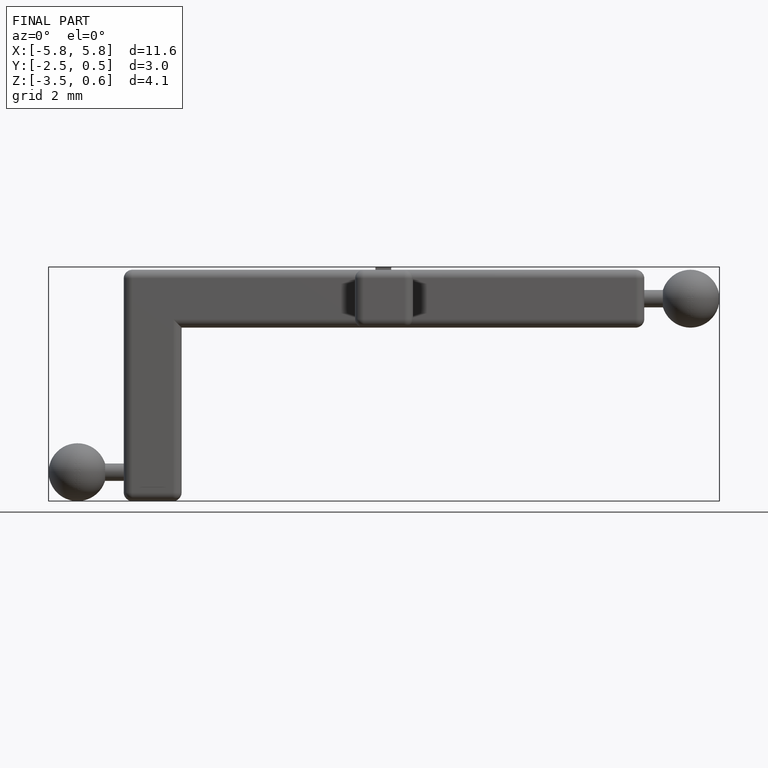
[diagram: finished part — front view with bounding-box wireframe]
